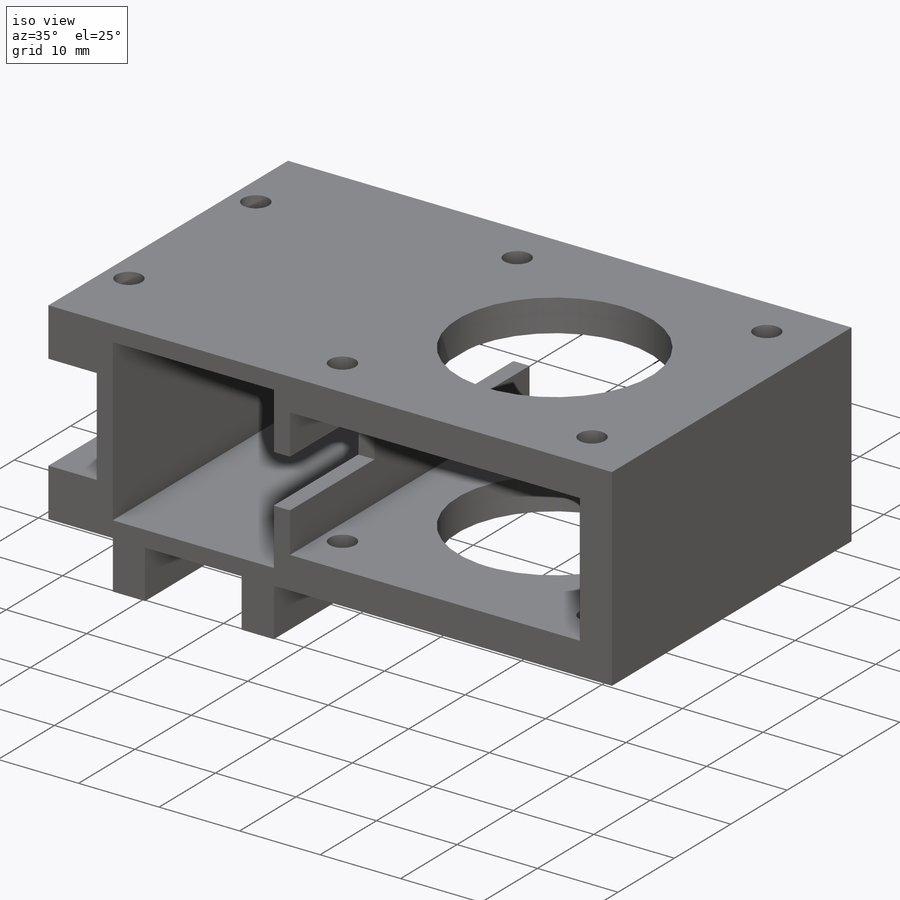
[diagram: iso view]
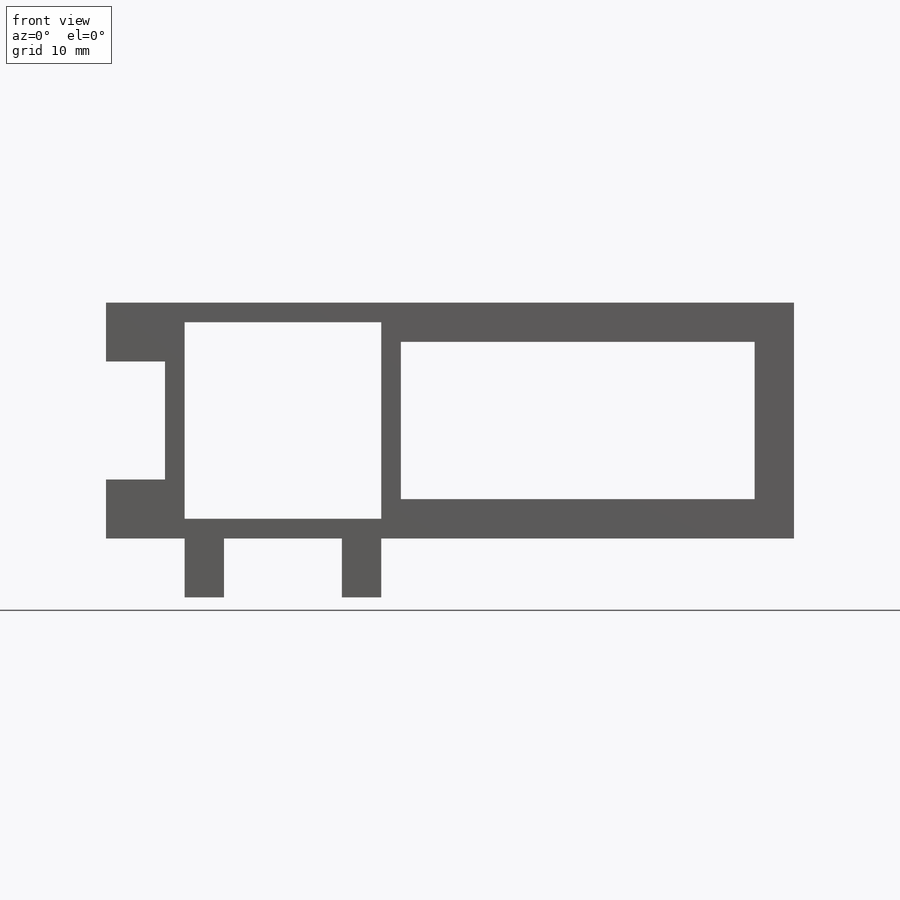
[diagram: front view]
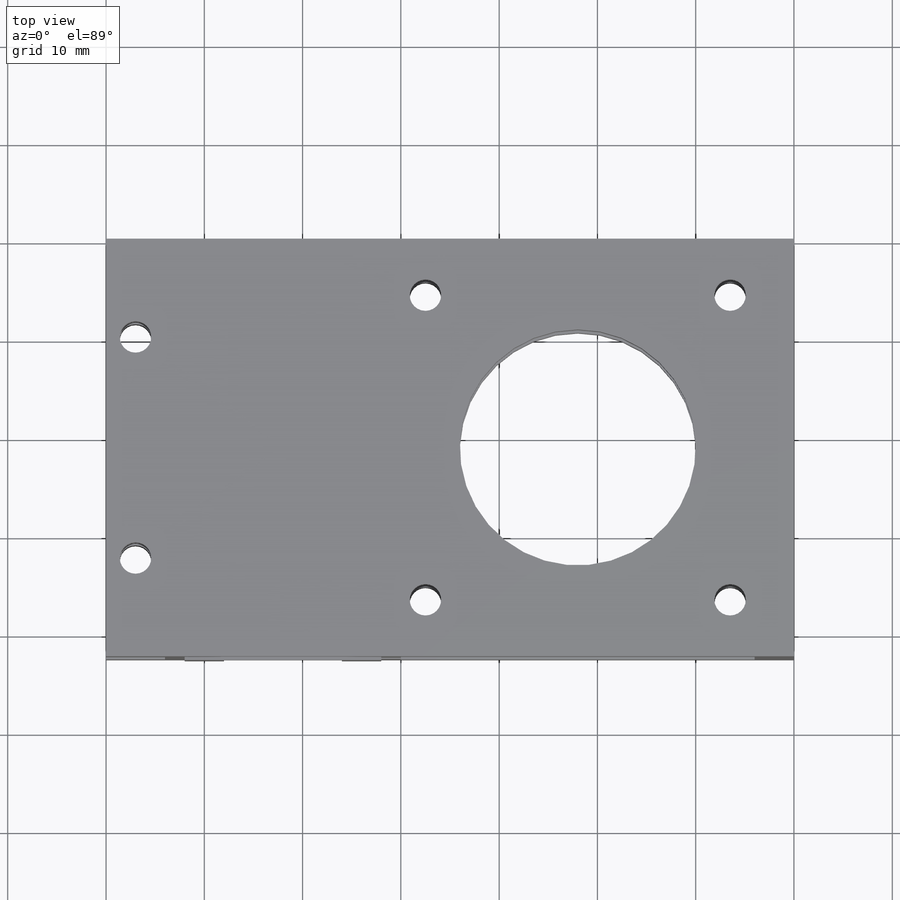
[diagram: top view]
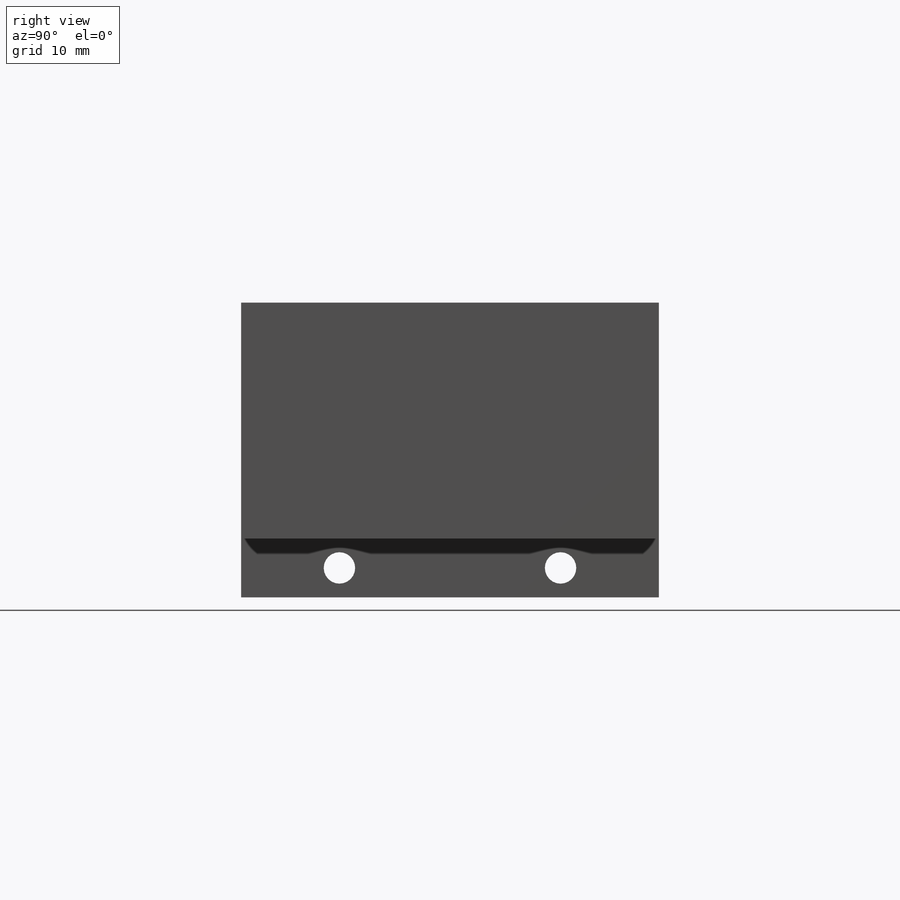
[diagram: right view]
SOLIDWORKS PART (.sldprt)
format: sldprt  version: not decoded by parser v0  size: 366,592 bytes
history: native  units: mm
features: sketch x9, plane x3, hole x3, cut_extrude x2, material x1, extrude x1 (+9 scaffold rows collapsed)
feature tree (28):
  scaffold x9  (default folders/planes/origin — collapsed)
  material  "Matériau <non spécifié>"
  plane  "Plan de face"
  plane  "Plan de dessus"
  plane  "Plan de droite"
  sketch  "Esquisse1"  dims[c1.D5=4.0mm c1.D8=~28.460561mm c1.D1=72.0mm c1.D2=24.0mm c1.D3=44.0mm c1.D4=6.0mm c2.D5=4.0mm c2.D6=6.0mm c2.D7=12.0mm c2.D8=6.0mm c2.D9=4.0mm c2.D10=6.0mm c2.D11=8.0mm c2.D12=6.0mm c2.D13=6.0mm c2.D14=12.0mm c2.D15=6.0mm c2.D16=~18.412651mm c2.D17=~19.145132mm c3.D16=20.2mm c3.D17=20.0mm c3.D18=2.0mm c3.D19=2.0mm c3.D20=~17.367392mm c3.D21=~36.905707mm c4.D20=4.0mm c4.D21=4.0mm c4.D22=4.0mm c4.D23=2.0mm]
  extrude  "Boss.-Extru.1"  Depth=42.5mm
  sketch  "Esquisse2"  dims[D1=43.0mm D2=22.0mm D3=43.0mm]
  cut_extrude  "Enlèv. mat.-Extru.1"  [1 undecoded]
  hole  "Dégagement M31"  Diameter=3.2mm Depth=24mm
  sketch  "Esquisse4"  dims[c1.D1=24.0mm c1.D2=31.0mm c2.D1=31.0mm c2.D2=31.0mm c2.D3=~9.592352mm c2.D4=~13.155442mm]
  sketch  "Esquisse3"  dims[hole-wizard template sketch: 59 standard entries collapsed; hole parameters kept: c18.Diamètre du perçage jusqu'au prochain=3.2mm c18.Profondeur du perçage jusqu'au prochain=24.0mm]
  hole  "Dégagement M32"  Diameter=3.2mm Depth=28mm
  sketch  "Esquisse6"  dims[D1=10.0mm D2=10.0mm]
  sketch  "Esquisse7"  dims[hole-wizard template sketch: 59 standard entries collapsed; hole parameters kept: c18.Diamètre du perçage jusqu'au prochain=3.2mm c18.Profondeur du perçage jusqu'au prochain=28.0mm]
  hole  "Dégagement M33"  Diameter=3.2mm Depth=24mm
  sketch  "Esquisse9"  dims[D1=10.0mm D2=10.0mm D3=3.0mm]
  sketch  "Esquisse10"  dims[hole-wizard template sketch: 59 standard entries collapsed; hole parameters kept: c18.Diamètre du perçage jusqu'au prochain=3.2mm c18.Profondeur du perçage jusqu'au prochain=24.0mm]
  sketch  "Esquisse11"  dims[c1.D1=~7.628185mm c1.D2=~17.25642mm c2.D1=~7.628185mm c2.D2=~21.392821mm c3.D1=15.0mm c3.D2=15.0mm c3.D3=6.0mm c3.D4=5.0mm]
  cut_extrude  "Enlèv. mat.-Extru.2"  [1 undecoded]
decode coverage: 13 of 15 modeling features carry decoded parameters
note: ~ marks probable driven/reference dimensions
note: 2 parameter values undecoded
note: suppression state not decoded; provenance and decode notes live in map.json
